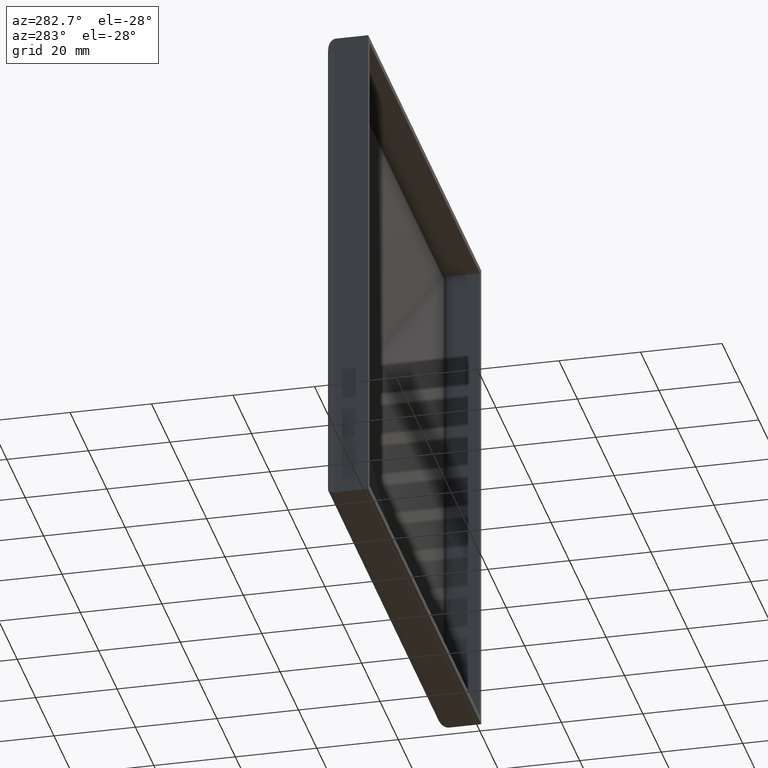
[diagram: clean part render]
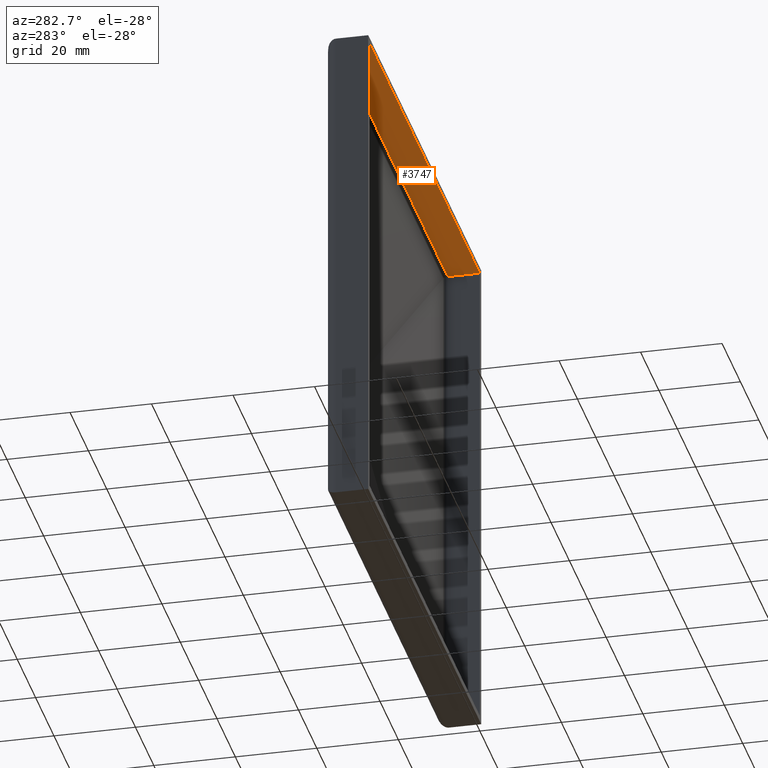
[diagram: same view with one face highlighted and labeled with its STEP entity id]
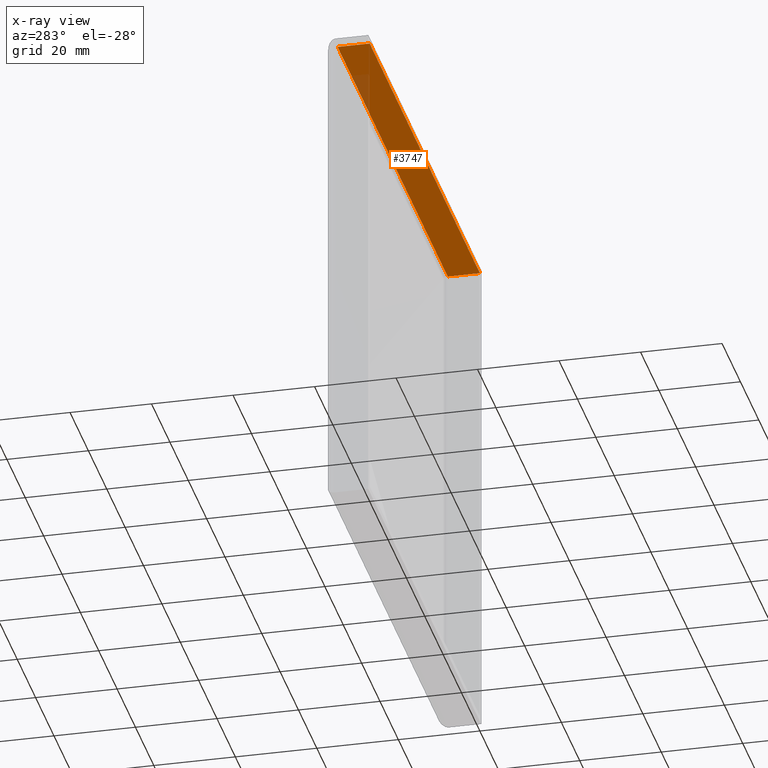
[diagram: x-ray of the same camera — body ghosted, the highlighted face saturated]
A machine part, auxiliary view. The second image highlights one B-rep face of the part: STEP entity #3747.
The next image is the same camera in x-ray: the body ghosted, the highlighted face saturated — about 5% of this face is hidden behind the body in this view.
In plain terms, the highlighted planar face has unit normal (0, 0, -1).
Its self-contained STEP definition (entity closure, byte-faithful):
#85 = VECTOR ( 'NONE', #3428, 1000.000000000000000 ) ;
#445 = EDGE_CURVE ( 'NONE', #2837, #6468, #10198, .T. ) ;
#643 = PLANE ( 'NONE',  #12077 ) ;
#1458 = CARTESIAN_POINT ( 'NONE',  ( -59.99999999999999300, 25.00000000000000000, 60.00000000000000000 ) ) ;
#1620 = ORIENTED_EDGE ( 'NONE', *, *, #445, .T. ) ;
#2244 = CARTESIAN_POINT ( 'NONE',  ( 60.00000000000001400, 0.0000000000000000000, 60.00000000000000000 ) ) ;
#2340 = CARTESIAN_POINT ( 'NONE',  ( -61.49999999999999300, 0.0000000000000000000, 60.00000000000000000 ) ) ;
#2712 = CARTESIAN_POINT ( 'NONE',  ( -61.49999999999999300, 25.00000000000000000, 60.00000000000000000 ) ) ;
#2815 = LINE ( 'NONE', #2340, #85 ) ;
#2837 = VERTEX_POINT ( 'NONE', #12129 ) ;
#2938 = ORIENTED_EDGE ( 'NONE', *, *, #4306, .T. ) ;
#3339 = EDGE_CURVE ( 'NONE', #7076, #6468, #2815, .T. ) ;
#3428 = DIRECTION ( 'NONE',  ( 1.000000000000000000, -0.0000000000000000000, 0.0000000000000000000 ) ) ;
#3490 = DIRECTION ( 'NONE',  ( 0.0000000000000000000, -1.000000000000000000, 0.0000000000000000000 ) ) ;
#3747 = ADVANCED_FACE ( 'NONE', ( #7468 ), #643, .T. ) ;
#4278 = VECTOR ( 'NONE', #12227, 1000.000000000000000 ) ;
#4306 = EDGE_CURVE ( 'NONE', #11915, #2837, #6056, .T. ) ;
#4683 = EDGE_LOOP ( 'NONE', ( #2938, #1620, #9025, #8359 ) ) ;
#5342 = VECTOR ( 'NONE', #3490, 1000.000000000000000 ) ;
#6056 = LINE ( 'NONE', #11180, #4278 ) ;
#6468 = VERTEX_POINT ( 'NONE', #2244 ) ;
#6922 = DIRECTION ( 'NONE',  ( 0.0000000000000000000, -1.000000000000000000, 0.0000000000000000000 ) ) ;
#7076 = VERTEX_POINT ( 'NONE', #10731 ) ;
#7468 = FACE_OUTER_BOUND ( 'NONE', #4683, .T. ) ;
#8359 = ORIENTED_EDGE ( 'NONE', *, *, #12340, .F. ) ;
#8812 = DIRECTION ( 'NONE',  ( 0.0000000000000000000, 0.0000000000000000000, -1.000000000000000000 ) ) ;
#9025 = ORIENTED_EDGE ( 'NONE', *, *, #3339, .F. ) ;
#9997 = LINE ( 'NONE', #1458, #5342 ) ;
#10198 = LINE ( 'NONE', #13071, #11640 ) ;
#10731 = CARTESIAN_POINT ( 'NONE',  ( -59.99999999999999300, 0.0000000000000000000, 60.00000000000000000 ) ) ;
#11180 = CARTESIAN_POINT ( 'NONE',  ( -61.50000000000011400, 7.873715392397326000, 60.00000000000014200 ) ) ;
#11640 = VECTOR ( 'NONE', #6922, 1000.000000000000000 ) ;
#11915 = VERTEX_POINT ( 'NONE', #12092 ) ;
#11933 = DIRECTION ( 'NONE',  ( -1.000000000000000000, 0.0000000000000000000, -0.0000000000000000000 ) ) ;
#12077 = AXIS2_PLACEMENT_3D ( 'NONE', #2712, #8812, #11933 ) ;
#12092 = CARTESIAN_POINT ( 'NONE',  ( -60.00000000000004300, 7.873715392397326000, 60.00000000000008500 ) ) ;
#12129 = CARTESIAN_POINT ( 'NONE',  ( 60.00000000000006400, 7.873715392397324200, 60.00000000000005700 ) ) ;
#12227 = DIRECTION ( 'NONE',  ( 1.000000000000000000, -0.0000000000000000000, -4.440892098500625700E-016 ) ) ;
#12340 = EDGE_CURVE ( 'NONE', #11915, #7076, #9997, .T. ) ;
#13071 = CARTESIAN_POINT ( 'NONE',  ( 60.00000000000001400, 25.00000000000000000, 60.00000000000000000 ) ) ;